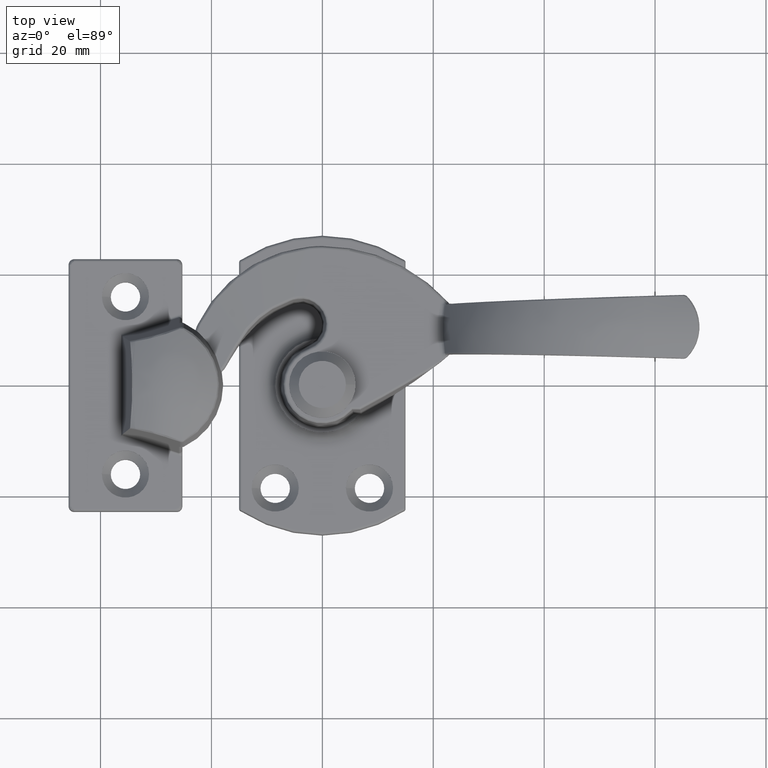
[diagram: clean part render]
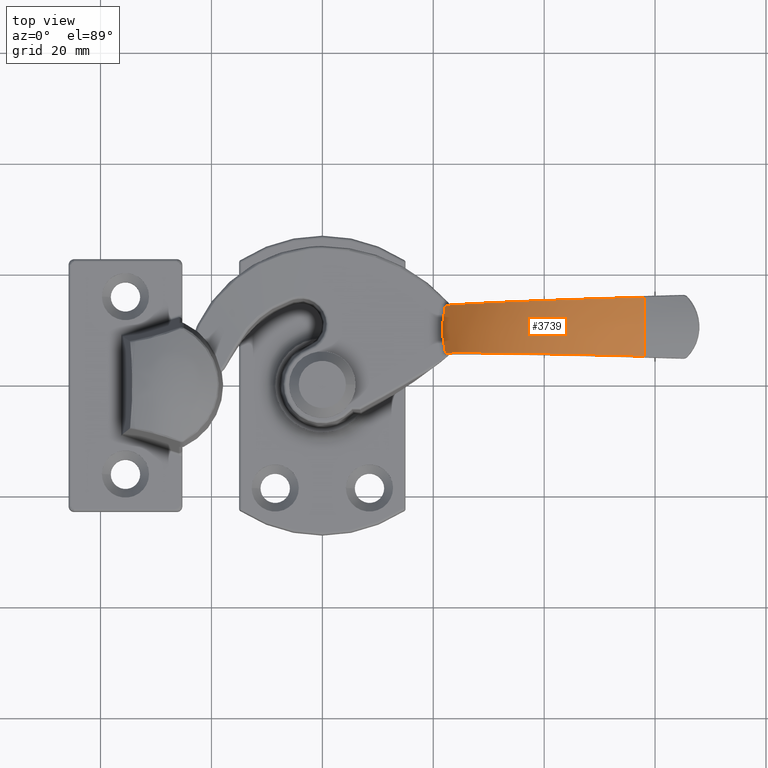
[diagram: same view with one face highlighted and labeled with its STEP entity id]
A machine part, top view. The second image highlights one B-rep face of the part: STEP entity #3739.
In plain terms, the highlighted face is a freeform B-spline surface patch.
Its self-contained STEP definition (entity closure, byte-faithful):
#59=ELLIPSE('',#4180,20.5053285201994,20.07132338902);
#110=(
BOUNDED_SURFACE()
B_SPLINE_SURFACE(2,2,((#8010,#8011,#8012,#8013,#8014),(#8015,#8016,#8017,
#8018,#8019),(#8020,#8021,#8022,#8023,#8024)),.UNSPECIFIED.,.F.,.F.,.F.)
B_SPLINE_SURFACE_WITH_KNOTS((3,3),(3,2,3),(2.50697160484419,3.14159265358979),
(0.,0.933903051341726,1.86780610268345),.UNSPECIFIED.)
GEOMETRIC_REPRESENTATION_ITEM()
RATIONAL_B_SPLINE_SURFACE(((1.,0.892944755515845,1.,0.892944755515845,1.),
(0.950078003120126,0.848367170217082,0.950078003120126,0.848367170217082,
0.950078003120126),(1.,0.892944755515845,1.,0.892944755515845,1.)))
REPRESENTATION_ITEM('')
SURFACE()
);
#138=B_SPLINE_CURVE_WITH_KNOTS('',3,(#6656,#6657,#6658,#6659),
 .UNSPECIFIED.,.F.,.F.,(4,4),(0.,0.905831313137873),.UNSPECIFIED.);
#149=B_SPLINE_CURVE_WITH_KNOTS('',3,(#6884,#6885,#6886,#6887,#6888,#6889),
 .UNSPECIFIED.,.F.,.F.,(4,1,1,4),(0.,2.00227250991011,3.33712084985018,
4.67196918979025),.UNSPECIFIED.);
#167=B_SPLINE_CURVE_WITH_KNOTS('',3,(#7257,#7258,#7259,#7260,#7261,#7262),
 .UNSPECIFIED.,.F.,.F.,(4,1,1,4),(0.072174894625716,2.07414318250389,3.408788707756,
4.74343423300811),.UNSPECIFIED.);
#1054=FACE_OUTER_BOUND('',#1344,.T.);
#1344=EDGE_LOOP('',(#3441,#3442,#3443,#3444));
#1829=VERTEX_POINT('',#6626);
#1831=VERTEX_POINT('',#6654);
#1840=VERTEX_POINT('',#6882);
#1875=VERTEX_POINT('',#7256);
#2284=EDGE_CURVE('',#1831,#1829,#138,.T.);
#2300=EDGE_CURVE('',#1840,#1831,#149,.T.);
#2346=EDGE_CURVE('',#1829,#1875,#167,.T.);
#2452=EDGE_CURVE('',#1875,#1840,#59,.F.);
#3441=ORIENTED_EDGE('',*,*,#2284,.F.);
#3442=ORIENTED_EDGE('',*,*,#2300,.F.);
#3443=ORIENTED_EDGE('',*,*,#2452,.F.);
#3444=ORIENTED_EDGE('',*,*,#2346,.F.);
#3739=ADVANCED_FACE('',(#1054),#110,.F.);
#4180=AXIS2_PLACEMENT_3D('',#8025,#5233,#5234);
#5233=DIRECTION('center_axis',(-1.,-1.16455050697694E-15,-2.37125605910732E-12));
#5234=DIRECTION('ref_axis',(-1.1893179063345E-15,0.999999999945453,1.04448439155132E-5));
#6626=CARTESIAN_POINT('',(22.1886458541279,14.2889786694432,6.69223305929012));
#6654=CARTESIAN_POINT('',(22.1842259629489,5.71143235906035,6.69220492480454));
#6656=CARTESIAN_POINT('Ctrl Pts',(22.1842259629489,5.71143235906035,6.69220492480457));
#6657=CARTESIAN_POINT('Ctrl Pts',(21.5637754100582,8.52563852637314,6.68825602891642));
#6658=CARTESIAN_POINT('Ctrl Pts',(21.5652962194436,11.4754139856511,6.6882646358709));
#6659=CARTESIAN_POINT('Ctrl Pts',(22.188645854128,14.2889786694432,6.6922330592901));
#6882=CARTESIAN_POINT('',(58.0000000002129,4.68713845216418,32.3171602792969));
#6884=CARTESIAN_POINT('Ctrl Pts',(58.0000000002171,4.6871385630067,32.3171598563578));
#6885=CARTESIAN_POINT('Ctrl Pts',(51.2765883767347,4.87943158483029,32.3675526477398));
#6886=CARTESIAN_POINT('Ctrl Pts',(40.0623680871934,5.20015224089689,29.3560165555749));
#6887=CARTESIAN_POINT('Ctrl Pts',(27.9807481412073,5.54566551259452,18.9342317717026));
#6888=CARTESIAN_POINT('Ctrl Pts',(23.6022654290306,5.67087986948713,10.9463150016396));
#6889=CARTESIAN_POINT('Ctrl Pts',(22.1842259629489,5.71143235906035,6.69220492480454));
#7256=CARTESIAN_POINT('',(58.0000000001028,15.3131473720684,32.3119417606142));
#7257=CARTESIAN_POINT('Ctrl Pts',(22.1886458541279,14.2889786694432,6.69223305929012));
#7258=CARTESIAN_POINT('Ctrl Pts',(24.3156804637828,14.3498067572768,13.0723237964544));
#7259=CARTESIAN_POINT('Ctrl Pts',(30.7881410801055,14.5349040245987,22.7137425929529));
#7260=CARTESIAN_POINT('Ctrl Pts',(44.5484386543227,14.9284312125371,30.7834027708887));
#7261=CARTESIAN_POINT('Ctrl Pts',(53.5184117892178,15.1849713590524,32.3456664144415));
#7262=CARTESIAN_POINT('Ctrl Pts',(58.0000000000005,15.3131472637705,32.3119413490325));
#8010=CARTESIAN_POINT('Ctrl Pts',(22.5,3.7402062655986,6.));
#8011=CARTESIAN_POINT('Ctrl Pts',(28.1318609479934,3.7402062655986,23.8968544339882));
#8012=CARTESIAN_POINT('Ctrl Pts',(45.8692585582869,3.7402062655986,30.0124069342329));
#8013=CARTESIAN_POINT('Ctrl Pts',(63.6066561685804,3.7402062655986,36.1279594344776));
#8014=CARTESIAN_POINT('Ctrl Pts',(79.071679805943,3.7402062655986,25.5049513734474));
#8015=CARTESIAN_POINT('Ctrl Pts',(20.4474548440066,9.99020626559861,6.));
#8016=CARTESIAN_POINT('Ctrl Pts',(26.079315792,9.99020626559861,24.931617867115));
#8017=CARTESIAN_POINT('Ctrl Pts',(44.6486085730519,9.99020626559861,31.6625448772358));
#8018=CARTESIAN_POINT('Ctrl Pts',(63.2179013541038,9.99020626559861,38.3934718873566));
#8019=CARTESIAN_POINT('Ctrl Pts',(79.6723822269754,9.99020626559861,27.4676276633022));
#8020=CARTESIAN_POINT('Ctrl Pts',(22.5,16.2402062655986,6.));
#8021=CARTESIAN_POINT('Ctrl Pts',(28.1318609479934,16.2402062655986,23.8968544339882));
#8022=CARTESIAN_POINT('Ctrl Pts',(45.8692585582869,16.2402062655986,30.0124069342329));
#8023=CARTESIAN_POINT('Ctrl Pts',(63.6066561685804,16.2402062655986,36.1279594344776));
#8024=CARTESIAN_POINT('Ctrl Pts',(79.071679805943,16.2402062655986,25.5049513734474));
#8025=CARTESIAN_POINT('Origin',(58.000000000046,9.99019725253712,12.9286766152493));